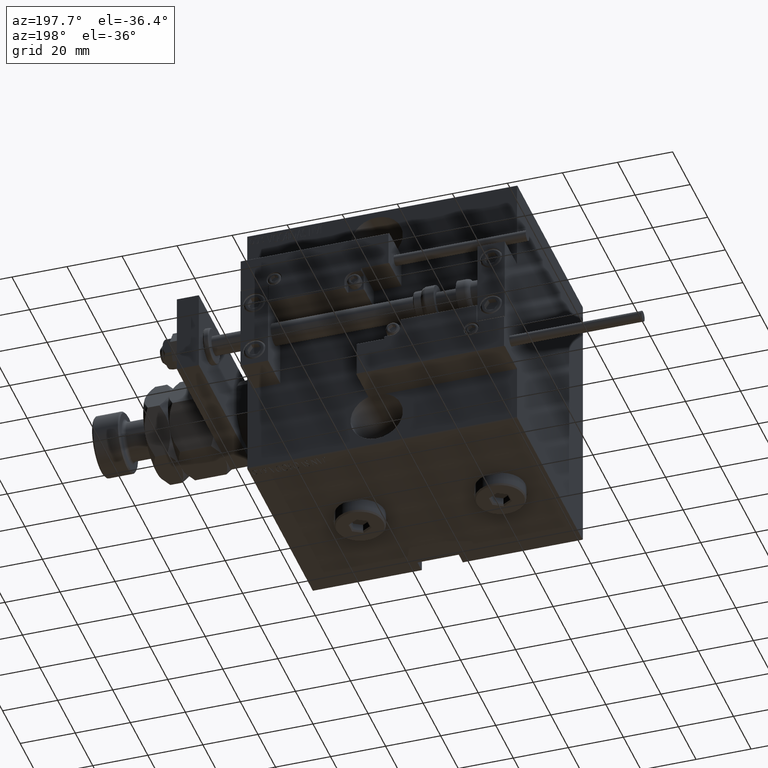
[diagram: clean part render]
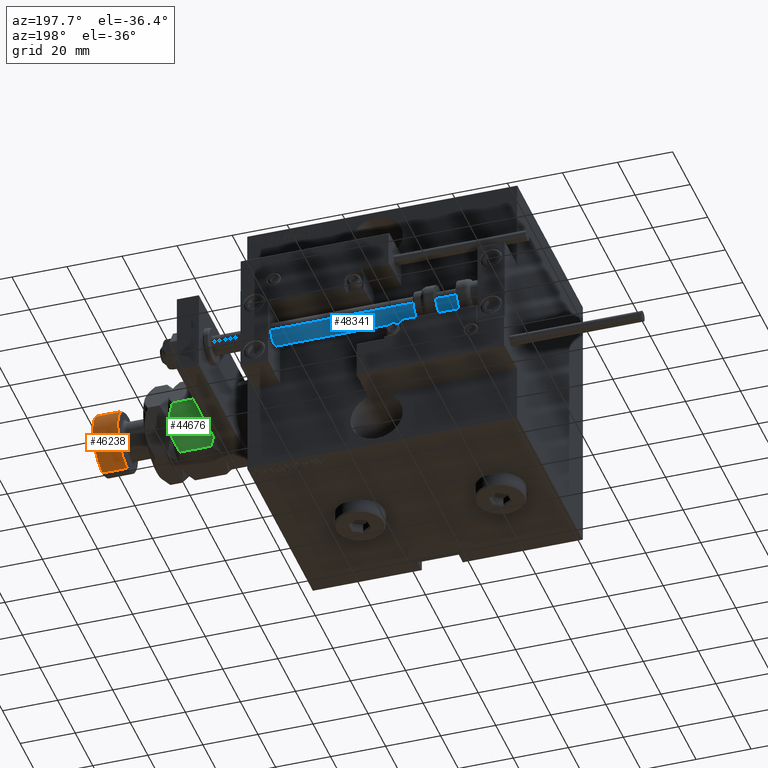
[diagram: same view with three faces highlighted in distinct colors, each labeled with its STEP entity id]
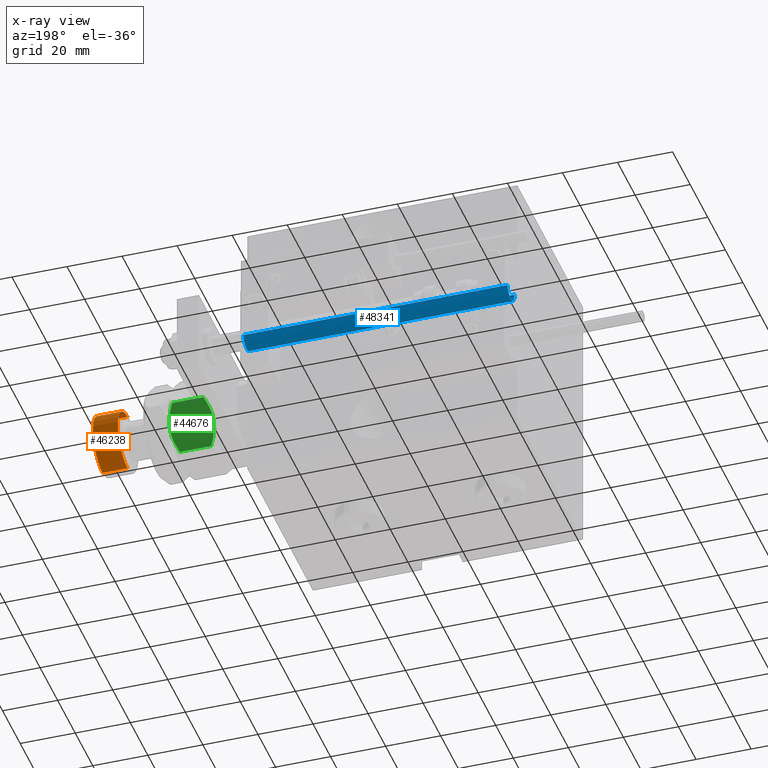
[diagram: x-ray of the same camera — body ghosted, the three highlighted faces saturated]
A machine part, auxiliary view with three faces highlighted in distinct colors.
The next image is the same camera in x-ray (body ghosted, the three faces saturated) — at least one of them is partly hidden behind the body in this view.
Their STEP definitions:

[orange] entity #46238 — the highlighted cylindrical surface (edge-blend (fillet) strip) has radius 11 mm, axis along (-1, -0, 0).
#895 = CARTESIAN_POINT ( 'NONE',  ( -11.00000000000000000, 0.000000000000000000, 45.00000000000000711 ) ) ;
#1698 = DIRECTION ( 'NONE',  ( 1.000000000000000000, 0.000000000000000000, 0.000000000000000000 ) ) ;
#2847 = VERTEX_POINT ( 'NONE', #42743 ) ;
#4370 = AXIS2_PLACEMENT_3D ( 'NONE', #38220, #49975, #1698 ) ;
#4698 = EDGE_CURVE ( 'NONE', #2847, #9857, #6914, .T. ) ;
#5368 = AXIS2_PLACEMENT_3D ( 'NONE', #18557, #10313, #30041 ) ;
#6067 = ORIENTED_EDGE ( 'NONE', *, *, #44965, .T. ) ;
#6914 = CIRCLE ( 'NONE', #4370, 11.00000000000000000 ) ;
#8062 = CARTESIAN_POINT ( 'NONE',  ( 11.00000000000000000, 1.347111479062088405E-15, 44.50000000000001421 ) ) ;
#9435 = LINE ( 'NONE', #895, #33624 ) ;
#9857 = VERTEX_POINT ( 'NONE', #10704 ) ;
#9930 = VERTEX_POINT ( 'NONE', #44288 ) ;
#10313 = DIRECTION ( 'NONE',  ( -0.000000000000000000, -0.000000000000000000, -1.000000000000000000 ) ) ;
#10704 = CARTESIAN_POINT ( 'NONE',  ( -11.00000000000000000, 0.000000000000000000, 35.50000000000001421 ) ) ;
#10815 = VECTOR ( 'NONE', #35307, 1000.000000000000000 ) ;
#11323 = CARTESIAN_POINT ( 'NONE',  ( 11.00000000000000000, 1.347111479062088405E-15, 45.00000000000000711 ) ) ;
#12503 = ORIENTED_EDGE ( 'NONE', *, *, #4698, .T. ) ;
#17514 = FACE_OUTER_BOUND ( 'NONE', #30997, .T. ) ;
#17804 = CARTESIAN_POINT ( 'NONE',  ( 0.000000000000000000, 0.000000000000000000, 44.50000000000001421 ) ) ;
#18557 = CARTESIAN_POINT ( 'NONE',  ( 0.000000000000000000, 0.000000000000000000, 45.00000000000000711 ) ) ;
#20996 = EDGE_CURVE ( 'NONE', #41598, #2847, #27321, .T. ) ;
#24092 = AXIS2_PLACEMENT_3D ( 'NONE', #17804, #49828, #33821 ) ;
#27321 = LINE ( 'NONE', #11323, #10815 ) ;
#28228 = ORIENTED_EDGE ( 'NONE', *, *, #20996, .T. ) ;
#30041 = DIRECTION ( 'NONE',  ( -1.000000000000000000, 0.000000000000000000, 0.000000000000000000 ) ) ;
#30997 = EDGE_LOOP ( 'NONE', ( #6067, #28228, #12503, #45343 ) ) ;
#33624 = VECTOR ( 'NONE', #33693, 1000.000000000000000 ) ;
#33693 = DIRECTION ( 'NONE',  ( -0.000000000000000000, -0.000000000000000000, -1.000000000000000000 ) ) ;
#33821 = DIRECTION ( 'NONE',  ( 1.000000000000000000, 0.000000000000000000, 0.000000000000000000 ) ) ;
#35307 = DIRECTION ( 'NONE',  ( -0.000000000000000000, -0.000000000000000000, -1.000000000000000000 ) ) ;
#38220 = CARTESIAN_POINT ( 'NONE',  ( 0.000000000000000000, 0.000000000000000000, 35.50000000000001421 ) ) ;
#39417 = CIRCLE ( 'NONE', #24092, 11.00000000000000000 ) ;
#41598 = VERTEX_POINT ( 'NONE', #8062 ) ;
#42743 = CARTESIAN_POINT ( 'NONE',  ( 11.00000000000000000, 1.347111479062088405E-15, 35.50000000000001421 ) ) ;
#44288 = CARTESIAN_POINT ( 'NONE',  ( -11.00000000000000000, 0.000000000000000000, 44.50000000000001421 ) ) ;
#44965 = EDGE_CURVE ( 'NONE', #9930, #41598, #39417, .T. ) ;
#45343 = ORIENTED_EDGE ( 'NONE', *, *, #49482, .F. ) ;
#46238 = ADVANCED_FACE ( 'NONE', ( #17514 ), #47085, .T. ) ;
#47085 = CYLINDRICAL_SURFACE ( 'NONE', #5368, 11.00000000000000000 ) ;
#49482 = EDGE_CURVE ( 'NONE', #9930, #9857, #9435, .T. ) ;
#49828 = DIRECTION ( 'NONE',  ( 0.000000000000000000, 0.000000000000000000, -1.000000000000000000 ) ) ;
#49975 = DIRECTION ( 'NONE',  ( -0.000000000000000000, -0.000000000000000000, 1.000000000000000000 ) ) ;

[blue] entity #48341 — the highlighted cylindrical surface (edge-blend (fillet) strip) has radius 4 mm, axis along (1, 0, -0).
#1516 = LINE ( 'NONE', #13797, #28716 ) ;
#3211 = EDGE_CURVE ( 'NONE', #37088, #42641, #33262, .T. ) ;
#3675 = CIRCLE ( 'NONE', #45387, 4.000000000000000000 ) ;
#4374 = DIRECTION ( 'NONE',  ( -0.000000000000000000, -0.000000000000000000, -1.000000000000000000 ) ) ;
#5244 = CARTESIAN_POINT ( 'NONE',  ( 0.000000000000000000, 0.000000000000000000, 98.00000000000000000 ) ) ;
#6439 = ORIENTED_EDGE ( 'NONE', *, *, #3211, .T. ) ;
#8127 = LINE ( 'NONE', #43871, #23813 ) ;
#8224 = DIRECTION ( 'NONE',  ( 1.000000000000000000, 0.000000000000000000, 0.000000000000000000 ) ) ;
#8824 = CARTESIAN_POINT ( 'NONE',  ( -4.000000000000000000, 0.000000000000000000, 98.00000000000000000 ) ) ;
#10269 = AXIS2_PLACEMENT_3D ( 'NONE', #52267, #52536, #47199 ) ;
#10367 = ORIENTED_EDGE ( 'NONE', *, *, #46205, .F. ) ;
#12501 = DIRECTION ( 'NONE',  ( 0.000000000000000000, 0.000000000000000000, 1.000000000000000000 ) ) ;
#13797 = CARTESIAN_POINT ( 'NONE',  ( 4.000000000000000000, 4.898587196589412829E-16, 98.00000000000000000 ) ) ;
#15145 = DIRECTION ( 'NONE',  ( -1.000000000000000000, 0.000000000000000000, 0.000000000000000000 ) ) ;
#16833 = CARTESIAN_POINT ( 'NONE',  ( 4.000000000000000000, 4.898587196589412829E-16, 98.00000000000000000 ) ) ;
#21484 = EDGE_CURVE ( 'NONE', #52363, #37088, #1516, .T. ) ;
#21514 = FACE_OUTER_BOUND ( 'NONE', #39371, .T. ) ;
#22050 = CARTESIAN_POINT ( 'NONE',  ( 0.000000000000000000, 0.000000000000000000, 98.00000000000000000 ) ) ;
#23813 = VECTOR ( 'NONE', #4374, 1000.000000000000000 ) ;
#25013 = EDGE_CURVE ( 'NONE', #28179, #42641, #8127, .T. ) ;
#25557 = DIRECTION ( 'NONE',  ( -0.000000000000000000, -0.000000000000000000, -1.000000000000000000 ) ) ;
#26856 = DIRECTION ( 'NONE',  ( -0.000000000000000000, -0.000000000000000000, -1.000000000000000000 ) ) ;
#28179 = VERTEX_POINT ( 'NONE', #8824 ) ;
#28716 = VECTOR ( 'NONE', #26856, 1000.000000000000000 ) ;
#33262 = CIRCLE ( 'NONE', #10269, 4.000000000000000000 ) ;
#34053 = CYLINDRICAL_SURFACE ( 'NONE', #47206, 4.000000000000000000 ) ;
#35442 = ORIENTED_EDGE ( 'NONE', *, *, #21484, .T. ) ;
#36295 = ORIENTED_EDGE ( 'NONE', *, *, #25013, .F. ) ;
#37088 = VERTEX_POINT ( 'NONE', #41299 ) ;
#39371 = EDGE_LOOP ( 'NONE', ( #10367, #35442, #6439, #36295 ) ) ;
#41299 = CARTESIAN_POINT ( 'NONE',  ( 4.000000000000000000, 4.898587196589412829E-16, 2.000000000000029310 ) ) ;
#42641 = VERTEX_POINT ( 'NONE', #50409 ) ;
#43871 = CARTESIAN_POINT ( 'NONE',  ( -4.000000000000000000, 0.000000000000000000, 98.00000000000000000 ) ) ;
#45387 = AXIS2_PLACEMENT_3D ( 'NONE', #5244, #12501, #8224 ) ;
#46205 = EDGE_CURVE ( 'NONE', #52363, #28179, #3675, .T. ) ;
#47199 = DIRECTION ( 'NONE',  ( 1.000000000000000000, 0.000000000000000000, 0.000000000000000000 ) ) ;
#47206 = AXIS2_PLACEMENT_3D ( 'NONE', #22050, #25557, #15145 ) ;
#48341 = ADVANCED_FACE ( 'NONE', ( #21514 ), #34053, .T. ) ;
#50409 = CARTESIAN_POINT ( 'NONE',  ( -4.000000000000000000, 0.000000000000000000, 2.000000000000029310 ) ) ;
#52267 = CARTESIAN_POINT ( 'NONE',  ( 0.000000000000000000, 0.000000000000000000, 2.000000000000029310 ) ) ;
#52363 = VERTEX_POINT ( 'NONE', #16833 ) ;
#52536 = DIRECTION ( 'NONE',  ( -0.000000000000000000, -0.000000000000000000, 1.000000000000000000 ) ) ;

[green] entity #44676 — the highlighted planar face has unit normal (0, -0.866, 0.5).
#2145 = CARTESIAN_POINT ( 'NONE',  ( 15.00000000000000000, 8.660254037844389075, 13.67949192431123784 ) ) ;
#5196 = DIRECTION ( 'NONE',  ( -0.000000000000000000, -0.000000000000000000, -1.000000000000000000 ) ) ;
#5663 = CARTESIAN_POINT ( 'NONE',  ( 12.61607045183964715, 10.03661640420386902, 1.060479031370879843 ) ) ;
#6082 = CARTESIAN_POINT ( 'NONE',  ( 4.913081180497409939, 14.48393933357810504, 15.76967007806078946 ) ) ;
#6349 = CARTESIAN_POINT ( 'NONE',  ( 2.383929548160350631, 15.94414570932928576, 14.93952096862913059 ) ) ;
#6456 = CARTESIAN_POINT ( 'NONE',  ( 15.00000000000000000, 8.660254037844389075, 16.00000000000000000 ) ) ;
#6527 = EDGE_CURVE ( 'NONE', #18100, #50567, #26039, .T. ) ;
#7286 = B_SPLINE_CURVE_WITH_KNOTS ( 'NONE', 3,
 ( #2145, #46934, #38143, #26693, #42943, #50414, #37889, #34677 ),
 .UNSPECIFIED., .F., .F.,
 ( 4, 2, 2, 4 ),
 ( 2.544309033641602453E-07, 0.004488823491893906975, 0.006733108022389177119, 0.008977392552884448998 ),
 .UNSPECIFIED. ) ;
#7481 = ORIENTED_EDGE ( 'NONE', *, *, #22160, .T. ) ;
#9072 = CARTESIAN_POINT ( 'NONE',  ( 6.843123817691747490, 13.36962869744650639, -3.557538378468061917E-16 ) ) ;
#9795 = B_SPLINE_CURVE_WITH_KNOTS ( 'NONE', 3,
 ( #46971, #13678, #39251, #5663, #34977, #29926 ),
 .UNSPECIFIED., .F., .F.,
 ( 4, 2, 4 ),
 ( 0.008977392552884443794, 0.01343452311421656532, 0.01789165367554868685 ),
 .UNSPECIFIED. ) ;
#11029 = ORIENTED_EDGE ( 'NONE', *, *, #6527, .F. ) ;
#11534 = LINE ( 'NONE', #6456, #19250 ) ;
#12680 = CARTESIAN_POINT ( 'NONE',  ( 7.621669386706803087E-17, 17.32050807568877104, 2.320508075688761718 ) ) ;
#13275 = EDGE_CURVE ( 'NONE', #22609, #21317, #9795, .T. ) ;
#13678 = CARTESIAN_POINT ( 'NONE',  ( 8.804550678576910983, 12.23719837131869426, -5.031375706690542042E-16 ) ) ;
#13997 = ORIENTED_EDGE ( 'NONE', *, *, #27502, .F. ) ;
#14321 = CARTESIAN_POINT ( 'NONE',  ( 6.176419610670692784, 13.75455055083996214, 0.05953537397470201609 ) ) ;
#14583 = CARTESIAN_POINT ( 'NONE',  ( 2.378834511187503331, 15.94708733029709080, 1.064486067744004671 ) ) ;
#14773 = VECTOR ( 'NONE', #5196, 1000.000000000000000 ) ;
#15003 = DIRECTION ( 'NONE',  ( -0.000000000000000000, -0.000000000000000000, -1.000000000000000000 ) ) ;
#18100 = VERTEX_POINT ( 'NONE', #46828 ) ;
#18291 = CARTESIAN_POINT ( 'NONE',  ( 7.621669386706803087E-17, 17.32050807568877104, 2.320508075688761718 ) ) ;
#18596 = CARTESIAN_POINT ( 'NONE',  ( 6.195449321423087241, 13.74356374221446764, 16.00000000000000355 ) ) ;
#19137 = CARTESIAN_POINT ( 'NONE',  ( 3.803331551779305683E-16, 17.32050807568877104, 13.67949192431124317 ) ) ;
#19250 = VECTOR ( 'NONE', #15003, 1000.000000000000000 ) ;
#19317 = CARTESIAN_POINT ( 'NONE',  ( 7.499999999999997335, 12.99038105676658184, 0.000000000000000000 ) ) ;
#21317 = VERTEX_POINT ( 'NONE', #41272 ) ;
#22160 = EDGE_CURVE ( 'NONE', #51229, #21317, #11534, .T. ) ;
#22280 = CARTESIAN_POINT ( 'NONE',  ( 3.803331551779305683E-16, 17.32050807568877104, 13.67949192431124317 ) ) ;
#22609 = VERTEX_POINT ( 'NONE', #19317 ) ;
#22692 = FACE_OUTER_BOUND ( 'NONE', #35318, .T. ) ;
#24447 = LINE ( 'NONE', #24712, #14773 ) ;
#24712 = CARTESIAN_POINT ( 'NONE',  ( 0.000000000000000000, 17.32050807568877104, 16.00000000000000000 ) ) ;
#26000 = VERTEX_POINT ( 'NONE', #12680 ) ;
#26039 = B_SPLINE_CURVE_WITH_KNOTS ( 'NONE', 3,
 ( #35132, #18596, #6082, #6349, #35674, #19137 ),
 .UNSPECIFIED., .F., .F.,
 ( 4, 2, 4 ),
 ( 0.008977392552884448998, 0.01343452311421656706, 0.01789165367554868338 ),
 .UNSPECIFIED. ) ;
#26112 = CARTESIAN_POINT ( 'NONE',  ( 15.00000000000000000, 8.660254037844389075, 13.67949192431123784 ) ) ;
#26324 = CARTESIAN_POINT ( 'NONE',  ( 4.247772349543482484, 14.86805556622358893, 0.4475714085130255149 ) ) ;
#26693 = CARTESIAN_POINT ( 'NONE',  ( 10.75222765045651663, 11.11270654730956586, 15.55242859148697576 ) ) ;
#27502 = EDGE_CURVE ( 'NONE', #26000, #22609, #42315, .T. ) ;
#28955 = ORIENTED_EDGE ( 'NONE', *, *, #13275, .F. ) ;
#29301 = AXIS2_PLACEMENT_3D ( 'NONE', #49899, #29893, #46153 ) ;
#29600 = ORIENTED_EDGE ( 'NONE', *, *, #51807, .F. ) ;
#29893 = DIRECTION ( 'NONE',  ( -0.4999999999999997780, -0.8660254037844388186, 0.000000000000000000 ) ) ;
#29926 = CARTESIAN_POINT ( 'NONE',  ( 15.00000000000000000, 8.660254037844389075, 2.320508075688765715 ) ) ;
#33633 = PLANE ( 'NONE',  #29301 ) ;
#34677 = CARTESIAN_POINT ( 'NONE',  ( 7.500000000000000000, 12.99038105676657651, 16.00000000000000000 ) ) ;
#34977 = CARTESIAN_POINT ( 'NONE',  ( 13.82525345580783949, 9.338494271363313004, 1.642267842169781833 ) ) ;
#35132 = CARTESIAN_POINT ( 'NONE',  ( 7.500000000000000000, 12.99038105676657651, 16.00000000000000000 ) ) ;
#35318 = EDGE_LOOP ( 'NONE', ( #13997, #29600, #11029, #39512, #7481, #28955 ) ) ;
#35674 = CARTESIAN_POINT ( 'NONE',  ( 1.174746544192161846, 16.64226784216984356, 14.35773215783022572 ) ) ;
#37889 = CARTESIAN_POINT ( 'NONE',  ( 8.156876182308252510, 12.61113341608665728, 16.00000000000000355 ) ) ;
#38143 = CARTESIAN_POINT ( 'NONE',  ( 12.62116548881249756, 10.03367478323606221, 14.93551393225599710 ) ) ;
#39251 = CARTESIAN_POINT ( 'NONE',  ( 10.08691881950258740, 11.49682277995505331, 0.2303299219392160591 ) ) ;
#39512 = ORIENTED_EDGE ( 'NONE', *, *, #44636, .F. ) ;
#41272 = CARTESIAN_POINT ( 'NONE',  ( 15.00000000000000000, 8.660254037844389075, 2.320508075688765715 ) ) ;
#41587 = CARTESIAN_POINT ( 'NONE',  ( 7.499999999999997335, 12.99038105676658184, 0.000000000000000000 ) ) ;
#42315 = B_SPLINE_CURVE_WITH_KNOTS ( 'NONE', 3,
 ( #18291, #45594, #14583, #26324, #50833, #14321, #9072, #41587 ),
 .UNSPECIFIED., .F., .F.,
 ( 4, 2, 2, 4 ),
 ( 2.544309033652185071E-07, 0.004488823491893902638, 0.006733108022389172782, 0.008977392552884443794 ),
 .UNSPECIFIED. ) ;
#42943 = CARTESIAN_POINT ( 'NONE',  ( 10.11832554202262457, 11.47869010025374514, 15.71619733805371411 ) ) ;
#44636 = EDGE_CURVE ( 'NONE', #51229, #18100, #7286, .T. ) ;
#44676 = ADVANCED_FACE ( 'NONE', ( #22692 ), #33633, .F. ) ;
#45594 = CARTESIAN_POINT ( 'NONE',  ( 1.176108425306640504, 16.64148155974179843, 1.641481559741787111 ) ) ;
#46153 = DIRECTION ( 'NONE',  ( 0.8660254037844387076, -0.4999999999999997224, 0.000000000000000000 ) ) ;
#46828 = CARTESIAN_POINT ( 'NONE',  ( 7.500000000000000000, 12.99038105676657651, 16.00000000000000000 ) ) ;
#46934 = CARTESIAN_POINT ( 'NONE',  ( 13.82389157469336283, 9.339280553791368789, 14.35851844025821400 ) ) ;
#46971 = CARTESIAN_POINT ( 'NONE',  ( 7.499999999999997335, 12.99038105676658184, 0.000000000000000000 ) ) ;
#49899 = CARTESIAN_POINT ( 'NONE',  ( 15.00000000000000000, 8.660254037844389075, 16.00000000000000000 ) ) ;
#50414 = CARTESIAN_POINT ( 'NONE',  ( 8.823580389329306328, 12.22621156269319798, 15.94046462602529957 ) ) ;
#50567 = VERTEX_POINT ( 'NONE', #22280 ) ;
#50833 = CARTESIAN_POINT ( 'NONE',  ( 4.881674457977373649, 14.50207201327941320, 0.2838026619462936107 ) ) ;
#51229 = VERTEX_POINT ( 'NONE', #26112 ) ;
#51807 = EDGE_CURVE ( 'NONE', #50567, #26000, #24447, .T. ) ;